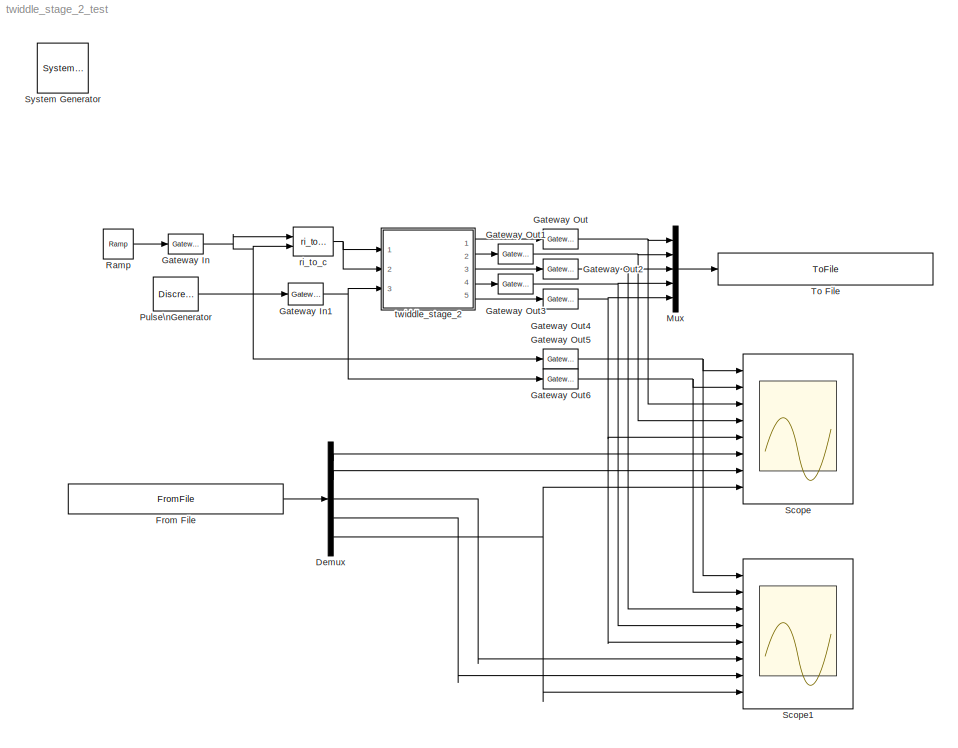
MODEL twiddle_stage_2_test
KIND model
BLOCK [Reference]  System Generator  REF=xbsIndex_r4/ System Generator
  AttributesFormatString = System\\nGenerator
  FunctionWithSeparateData = off
  Ports = []
  RTWMemSecDataConstants = Inherit from model
  RTWMemSecDataInternal = Inherit from model
  RTWMemSecDataParameters = Inherit from model
  RTWMemSecFuncExecute = Inherit from model
  RTWMemSecFuncInitTerm = Inherit from model
  ShowPortLabels = FromPortIcon
  SourceBlock = xbsIndex_r4/ System Generator
  SourceType = Xilinx System Generator Block
  SystemSampleTime = -1
  Tag = genX
  UserData = DataTag0
  UserDataPersistent = on
  block_type = sysgen
  block_version = 10.1.1
  clock_wrapper = Clock Enables
  core_generation = According to Block Masks
  dbl_ovrd = According to Block Masks
  dcm_input_clock_period = 100
  deprecated_control = off
  directory = ./netlist
  eval_field = 0
  has_advanced_control = 0
  incr_netlist = off
  infoedit = System Generator
  package = ff668
  part = xc4vsx35
  run_coregen = off
  sg_icon_stat = 51,50,-1,-1,red,beige,0,07734,right
  sg_mask_display = fprintf('','COMMENT: begin icon graphics');\npatch([0 51 51 0 ],[0 0 50 50 ],[0.93 0.92 0.86]);\npatch([12 4 16 4 12 25 29 33 47 36 25 17 29 17 25 36 47 33 29 25 12 ],[5 13 25 37 45 45 41 45 45 34 45 37 25 13 5 16 5 5 9 5 5 ],[0.6 0.2 0.25]);\nplot([0 51 51 0 0 ],[0 0 50 50 0 ]);\nfprintf('','COMMENT: end icon graphics');\nfprintf('','COMMENT: begin icon text');\nfprintf('','COMMENT: end icon text...<+5ch>
  sggui_pos = -1,-1,-1,-1
  simulink_period = 1
  speed = -10
  synthesis_tool = XST
  sysclk_period = 100
  testbench = off
  trim_vbits = Everywhere in SubSystem
  xilinxfamily = Virtex4
BLOCK [Demux] Demux
  DisplayOption = bar
  Outputs = 5
  Ports = [1, 5]
BLOCK [FromFile] From File
  FileName = twiddle_stage_2_test_reference.mat
  SampleTime = 1
BLOCK [Reference] Gateway In  REF=xbsIndex_r4/Gateway In
  LOCs = {}
  Ports = [1, 1]
  SourceBlock = xbsIndex_r4/Gateway In
  SourceType = Xilinx Gateway In Block
  arith_type = Signed  (2's comp)
  bin_pt = 4
  block_type = gatewayin
  block_version = 10.1.1
  dbl_ovrd = off
  has_advanced_control = 0
  hdl_port = on
  infoedit = Gateway in block.  Converts inputs of type Simulink integer, double and fixed point to  Xilinx fixed point type.<P><P>Hardware notes:  In hardware these blocks become top level input ports.
  locs_specified = off
  n_bits = 5
  overflow = Wrap
  period = 1
  quantization = Truncate
  sg_icon_stat = 35,20,1,1,white,yellow,0,00d3666e,right,
  sg_mask_display = fprintf('','COMMENT: begin icon graphics');\npatch([0 1 1 0 ],[0 0 1 1 ],[0.95 0.93 0.65]);\npatch([0.342857 0.257143 0.4 0.257143 0.342857 0.485714 0.514286 0.542857 0.714286 0.6 0.485714 0.4 0.542857 0.4 0.485714 0.6 0.714286 0.542857 0.514286 0.485714 0.342857 ],[0.1 0.25 0.5 0.75 0.9 0.9 0.85 0.9 0.9 0.7 0.9 0.75 0.5 0.25 0.1 0.3 0.1 0.1 0.15 0.1 0.1 ],[0.98 0.96 0.92]);\nplot([0 1 1 0 0 ],[0 ...<+261ch>
  sggui_pos = 811,72,407,458
  timing_constraint = None
  xl_area = [0,0,0,0,0,0,0]
  xl_use_area = off
BLOCK [Reference] Gateway In1  REF=xbsIndex_r4/Gateway In
  LOCs = {}
  Ports = [1, 1]
  SourceBlock = xbsIndex_r4/Gateway In
  SourceType = Xilinx Gateway In Block
  arith_type = Boolean
  bin_pt = 14
  block_type = gatewayin
  block_version = 10.1.1
  dbl_ovrd = off
  has_advanced_control = 0
  hdl_port = on
  infoedit = Gateway in block.  Converts inputs of type Simulink integer, double and fixed point to  Xilinx fixed point type.<P><P>Hardware notes:  In hardware these blocks become top level input ports.
  locs_specified = off
  n_bits = 16
  overflow = Saturate
  period = 1
  quantization = Round  (unbiased: +/- Inf)
  sg_icon_stat = 35,22,1,1,white,yellow,0,00d3666e,right,
  sg_mask_display = fprintf('','COMMENT: begin icon graphics');\npatch([0 1 1 0 ],[0 0 1 1 ],[0.95 0.93 0.65]);\npatch([0.342857 0.228571 0.371429 0.228571 0.342857 0.514286 0.571429 0.628571 0.8 0.657143 0.514286 0.428571 0.6 0.428571 0.514286 0.657143 0.8 0.628571 0.571429 0.514286 0.342857 ],[0.0909091 0.272727 0.5 0.727273 0.909091 0.909091 0.818182 0.909091 0.909091 0.681818 0.909091 0.772727 0.5 0.227273 0.0909...<+366ch>
  sggui_pos = 20,20,407,458
  timing_constraint = None
  xl_area = [0,0,0,0,0,0,0]
  xl_use_area = off
BLOCK [Reference] Gateway Out  REF=xbsIndex_r4/Gateway Out
  LOCs = {}
  Ports = [1, 1]
  SourceBlock = xbsIndex_r4/Gateway Out
  SourceType = Xilinx Gateway Out Block
  block_type = gatewayout
  block_version = 10.1.1
  has_advanced_control = 0
  hdl_port = on
  infoedit = Gateway out block.  Converts Xilinx fixed point inputs into ouputs of type Simulink integer, double, or fixed point.<P><P>Hardware notes:  In hardware these blocks become top level output ports or are discarded, depending on how they are configured.  <repeated x7 — deduplicated; at blocks: Gateway Out, Gateway Out1, Gateway Out2, Gateway Out3, Gateway Out4, Gateway Out5, Gateway Out6>
  locs_specified = off
  sg_icon_stat = 35,20,1,1,white,yellow,0,cc31b7ac,right,
  sg_mask_display = fprintf('','COMMENT: begin icon graphics');\npatch([0 1 1 0 ],[0 0 1 1 ],[0.95 0.93 0.65]);\npatch([0.342857 0.257143 0.4 0.257143 0.342857 0.485714 0.514286 0.542857 0.714286 0.6 0.485714 0.4 0.542857 0.4 0.485714 0.6 0.714286 0.542857 0.514286 0.485714 0.342857 ],[0.1 0.25 0.5 0.75 0.9 0.9 0.85 0.9 0.9 0.7 0.9 0.75 0.5 0.25 0.1 0.3 0.1 0.1 0.15 0.1 0.1 ],[0.98 0.96 0.92]);\nplot([0 1 1 0 0 ],[0 ...<+262ch>  <repeated x7 — deduplicated; at blocks: Gateway Out, Gateway Out1, Gateway Out2, Gateway Out3, Gateway Out4, Gateway Out5, Gateway Out6>
  sggui_pos = -1,-1,-1,-1
  timing_constraint = None
  xl_area = [0,0,0,0,0,0,0]
  xl_use_area = off
BLOCK [Reference] Gateway Out1  REF=xbsIndex_r4/Gateway Out
  LOCs = {}
  Ports = [1, 1]
  SourceBlock = xbsIndex_r4/Gateway Out
  SourceType = Xilinx Gateway Out Block
  block_type = gatewayout
  block_version = 10.1.1
  has_advanced_control = 0
  hdl_port = on
  locs_specified = off
  sg_icon_stat = 35,20,1,1,white,yellow,0,cc31b7ac,right,
  sggui_pos = -1,-1,-1,-1
  timing_constraint = None
  xl_area = [0,0,0,0,0,0,0]
  xl_use_area = off
BLOCK [Reference] Gateway Out2  REF=xbsIndex_r4/Gateway Out
  LOCs = {}
  Ports = [1, 1]
  SourceBlock = xbsIndex_r4/Gateway Out
  SourceType = Xilinx Gateway Out Block
  block_type = gatewayout
  block_version = 10.1.1
  has_advanced_control = 0
  hdl_port = on
  locs_specified = off
  sg_icon_stat = 35,20,1,1,white,yellow,0,cc31b7ac,right,
  sggui_pos = -1,-1,-1,-1
  timing_constraint = None
  xl_area = [0,0,0,0,0,0,0]
  xl_use_area = off
BLOCK [Reference] Gateway Out3  REF=xbsIndex_r4/Gateway Out
  LOCs = {}
  Ports = [1, 1]
  SourceBlock = xbsIndex_r4/Gateway Out
  SourceType = Xilinx Gateway Out Block
  block_type = gatewayout
  block_version = 10.1.1
  has_advanced_control = 0
  hdl_port = on
  locs_specified = off
  sg_icon_stat = 35,20,1,1,white,yellow,0,cc31b7ac,right,
  sggui_pos = -1,-1,-1,-1
  timing_constraint = None
  xl_area = [0,0,0,0,0,0,0]
  xl_use_area = off
BLOCK [Reference] Gateway Out4  REF=xbsIndex_r4/Gateway Out
  LOCs = {}
  Ports = [1, 1]
  SourceBlock = xbsIndex_r4/Gateway Out
  SourceType = Xilinx Gateway Out Block
  block_type = gatewayout
  block_version = 10.1.1
  has_advanced_control = 0
  hdl_port = on
  locs_specified = off
  sg_icon_stat = 35,20,1,1,white,yellow,0,cc31b7ac,right,
  sggui_pos = -1,-1,-1,-1
  timing_constraint = None
  xl_area = [0,0,0,0,0,0,0]
  xl_use_area = off
BLOCK [Reference] Gateway Out5  REF=xbsIndex_r4/Gateway Out
  LOCs = {}
  Ports = [1, 1]
  SourceBlock = xbsIndex_r4/Gateway Out
  SourceType = Xilinx Gateway Out Block
  block_type = gatewayout
  block_version = 10.1.1
  has_advanced_control = 0
  hdl_port = on
  locs_specified = off
  sg_icon_stat = 35,20,1,1,white,yellow,0,cc31b7ac,right,
  sggui_pos = -1,-1,-1,-1
  timing_constraint = None
  xl_area = [0,0,0,0,0,0,0]
  xl_use_area = off
BLOCK [Reference] Gateway Out6  REF=xbsIndex_r4/Gateway Out
  LOCs = {}
  Ports = [1, 1]
  SourceBlock = xbsIndex_r4/Gateway Out
  SourceType = Xilinx Gateway Out Block
  block_type = gatewayout
  block_version = 10.1.1
  has_advanced_control = 0
  hdl_port = on
  locs_specified = off
  sg_icon_stat = 35,20,1,1,white,yellow,0,cc31b7ac,right,
  sggui_pos = -1,-1,-1,-1
  timing_constraint = None
  xl_area = [0,0,0,0,0,0,0]
  xl_use_area = off
BLOCK [Mux] Mux
  DisplayOption = bar
  Inputs = 5
  Ports = [5, 1]
BLOCK [DiscretePulseGenerator] Pulse\nGenerator
  Period = 256
  PhaseDelay = 7
  Ports = [0, 1]
BLOCK [Reference] Ramp  REF=simulink/Sources/Ramp
  FunctionWithSeparateData = off
  Ports = [0, 1]
  RTWMemSecDataConstants = Inherit from model
  RTWMemSecDataInternal = Inherit from model
  RTWMemSecDataParameters = Inherit from model
  RTWMemSecFuncExecute = Inherit from model
  RTWMemSecFuncInitTerm = Inherit from model
  ShowPortLabels = FromPortIcon
  SourceBlock = simulink/Sources/Ramp
  SourceType = Ramp
  SystemSampleTime = -1
  VectorParams1D = on
  X0 = 0
  slope = 1/2^5
  start = 0
BLOCK [Scope] Scope
  DataFormat = StructureWithTime
  Floating = off
  NumInputPorts = 8
  Ports = [8]
  SampleTime = 0
  TimeRange = 1000
  YMax = 1~1~1~1~1~1~1~1
  YMin = -1~0~-1~-1~0~-1~-1~-1
  ZoomMode = xonly
BLOCK [Scope] Scope1
  DataFormat = StructureWithTime
  Floating = off
  NumInputPorts = 8
  Ports = [8]
  SampleTime = 0
  SaveName = ScopeData1
  YMax = 1~1~1~1~1~1~1~1
  YMin = -1~-1~-1~-1~-1~-1~-1~-1
  ZoomMode = xonly
BLOCK [ToFile] To File
  Filename = twiddle_stage_2_test_output.mat
  MatrixName = output
BLOCK [Reference] ri_to_c  REF=casper_library_misc/ri_to_c  (lib defined in mdl_357510c33b49, mdl_57b5f564ae26, +4 more)
  FunctionWithSeparateData = off
  Ports = [2, 1]
  RTWMemSecDataConstants = Inherit from model
  RTWMemSecDataInternal = Inherit from model
  RTWMemSecDataParameters = Inherit from model
  RTWMemSecFuncExecute = Inherit from model
  RTWMemSecFuncInitTerm = Inherit from model
  ShowPortLabels = FromPortIcon
  SourceBlock = casper_library_misc/ri_to_c
  SourceType = ri_to_c
  SystemSampleTime = -1
  UserData = DataTag1
  UserDataPersistent = on
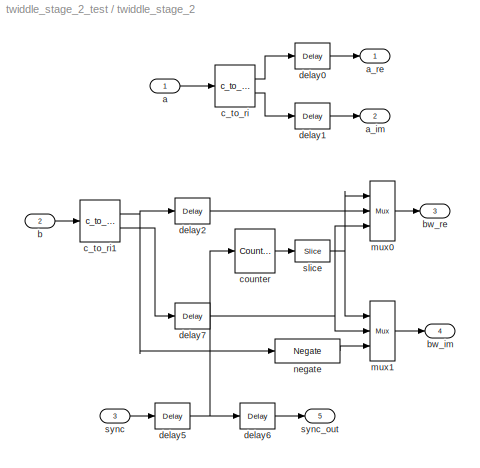
BLOCK [SubSystem] twiddle_stage_2
  AncestorBlock = casper_library_ffts_twiddle/twiddle_stage_2
  FunctionWithSeparateData = off
  MaskCallbackString = ||||||
  MaskDescription = Used in FFT library. Used when coefficients \nare 2^0 i.e just pass data through without delays
  MaskEnableString = on,on,on,on,on,on,on
  MaskHideContents = off
  MaskIconFrame = on
  MaskIconOpaque = on
  MaskIconRotate = none
  MaskIconUnits = autoscale
  MaskInitialization = set_param(gcb,'LinkStatus','inactive');\nif(strcmp(opt_target, 'logic')), \n    lat = add_latency;\n    lat_str = 'add_latency';\nelse,\n    lat = add_latency*2;\n    lat_str = 'add_latency*2';\nend\nset_param([gcb,'/delay0'], 'latency', ...\n    ['bram_latency+mult_latency+conv_latency+',lat_str]);\nset_param([gcb,'/delay1'], 'latency', ...\n    ['bram_latency+mult_latency+conv_latency+',lat_str]...<+265ch>
  MaskPromptString = FFT Size (2^?)|Input Bit Width|Add Latency|Mult Latency|BRAM Latency|Convert latency|Use less
  MaskSelfModifiable = on
  MaskStyleString = edit,edit,edit,edit,edit,edit,popup(logic|multipliers)
  MaskTabNameString = ,,,,,,
  MaskToolTipString = on,on,on,on,on,on,on
  MaskTunableValueString = on,on,on,on,on,on,on
  MaskType = twiddle_pass_through
  MaskValueString = 6|5|2|3|2|1|multipliers
  MaskVarAliasString = ,,,,,,
  MaskVariables = FFTSize=@1;input_bit_width=@2;add_latency=@3;mult_latency=@4;bram_latency=@5;conv_latency=@6;opt_target=&7;
  MaskVisibilityString = on,on,on,on,on,on,on
  MinAlgLoopOccurrences = off
  Opaque = off
  Ports = [3, 5]
  PropExecContextOutsideSubsystem = off
  RTWSystemCode = Auto
  RequestExecContextInheritance = off
BLOCK [Inport] twiddle_stage_2/a
  IconDisplay = Port number
  OutDataType = sfix(16)
  OutScaling = 2^0
BLOCK [Outport] twiddle_stage_2/a_im
  IconDisplay = Port number
  OutDataType = sfix(16)
  OutScaling = 2^0
  Port = 2
BLOCK [Outport] twiddle_stage_2/a_re
  IconDisplay = Port number
  OutDataType = sfix(16)
  OutScaling = 2^0
BLOCK [Inport] twiddle_stage_2/b
  IconDisplay = Port number
  OutDataType = sfix(16)
  OutScaling = 2^0
  Port = 2
BLOCK [Outport] twiddle_stage_2/bw_im
  IconDisplay = Port number
  OutDataType = sfix(16)
  OutScaling = 2^0
  Port = 4
BLOCK [Outport] twiddle_stage_2/bw_re
  IconDisplay = Port number
  OutDataType = sfix(16)
  OutScaling = 2^0
  Port = 3
BLOCK [Reference] twiddle_stage_2/c_to_ri  REF=casper_library_misc/c_to_ri  (lib defined in mdl_357510c33b49, mdl_57b5f564ae26, +4 more)
  AttributesFormatString = 5_4 r/i
  FunctionWithSeparateData = off
  Ports = [1, 2]
  RTWMemSecDataConstants = Inherit from model
  RTWMemSecDataInternal = Inherit from model
  RTWMemSecDataParameters = Inherit from model
  RTWMemSecFuncExecute = Inherit from model
  RTWMemSecFuncInitTerm = Inherit from model
  ShowPortLabels = FromPortIcon
  SourceBlock = casper_library_misc/c_to_ri
  SourceType = c_to_ri
  SystemSampleTime = -1
  UserData = DataTag2
  UserDataPersistent = on
  bin_pt = input_bit_width-1
  n_bits = input_bit_width
BLOCK [Reference] twiddle_stage_2/c_to_ri1  REF=casper_library_misc/c_to_ri  (lib defined in mdl_357510c33b49, mdl_57b5f564ae26, +4 more)
  AttributesFormatString = 5_4 r/i
  FunctionWithSeparateData = off
  Ports = [1, 2]
  RTWMemSecDataConstants = Inherit from model
  RTWMemSecDataInternal = Inherit from model
  RTWMemSecDataParameters = Inherit from model
  RTWMemSecFuncExecute = Inherit from model
  RTWMemSecFuncInitTerm = Inherit from model
  ShowPortLabels = FromPortIcon
  SourceBlock = casper_library_misc/c_to_ri
  SourceType = c_to_ri
  SystemSampleTime = -1
  UserData = DataTag3
  UserDataPersistent = on
  bin_pt = input_bit_width-1
  n_bits = input_bit_width
BLOCK [Reference] twiddle_stage_2/counter  REF=xbsIndex_r4/Counter
  Ports = [1, 1]
  SourceBlock = xbsIndex_r4/Counter
  SourceType = Xilinx Counter Block
  arith_type = Unsigned
  bin_pt = 0
  block_type = counter
  block_version = 11.4
  cnt_by_val = 1
  cnt_to = Inf
  cnt_type = Free Running
  dbl_ovrd = off
  en = off
  explicit_period = on
  has_advanced_control = 0
  implementation = Fabric
  infoedit = Hardware notes: Free running counters are the least expensive in hardware.  A count limited counter is implemented by combining a counter with a comparator.
  load_pin = off
  n_bits = FFTSize - 1
  operation = Up
  period = 1
  rst = on
  sg_icon_stat = 40,44,1,1,white,blue,0,c59595e6,right,
  sg_mask_display = fprintf('','COMMENT: begin icon graphics');\npatch([0 1 1 0 ],[0 0 1 1 ],[0.77 0.82 0.91]);\npatch([0.25 0.075 0.3 0.075 0.25 0.525 0.6 0.675 0.95 0.725 0.5 0.35 0.6 0.35 0.5 0.725 0.95 0.675 0.6 0.525 0.25 ],[0.136364 0.295455 0.5 0.704545 0.863636 0.863636 0.795455 0.863636 0.863636 0.659091 0.863636 0.727273 0.5 0.272727 0.136364 0.340909 0.136364 0.136364 0.204545 0.136364 0.136364 ],[0.98 0.9...<+259ch>
  sggui_pos = 1212,281,419,748
  start_count = 0
  use_behavioral_HDL = on
  xl_area = [0,0,0,0,0,0,0]
  xl_use_area = off
BLOCK [Reference] twiddle_stage_2/delay0  REF=xbsIndex_r4/Delay
  Ports = [1, 1]
  SourceBlock = xbsIndex_r4/Delay
  SourceType = Xilinx Delay Block
  block_type = delay
  block_version = 11.4
  dbl_ovrd = off
  en = off
  has_advanced_control = 0
  infoedit = Hardware notes: A delay line is a chain, each link of which is an SRL16 followed by a flip-flop.
  latency = bram_latency+mult_latency+conv_latency+add_latency*2
  reg_retiming = on
  sg_icon_stat = 35,26,1,1,white,blue,0,8c471295,right,
  sg_mask_display = fprintf('','COMMENT: begin icon graphics');\npatch([0 1 1 0 ],[0 0 1 1 ],[0.77 0.82 0.91]);\npatch([0.285714 0.171429 0.342857 0.171429 0.285714 0.485714 0.542857 0.6 0.8 0.628571 0.457143 0.342857 0.514286 0.342857 0.457143 0.628571 0.8 0.6 0.542857 0.485714 0.285714 ],[0.115385 0.269231 0.5 0.730769 0.884615 0.884615 0.807692 0.884615 0.884615 0.653846 0.884615 0.730769 0.5 0.269231 0.115385 0.3...<+278ch>
  sggui_pos = 554,317,419,315
  xl_area = [0,0,0,0,0,0,0]
  xl_use_area = off
BLOCK [Reference] twiddle_stage_2/delay1  REF=xbsIndex_r4/Delay
  Ports = [1, 1]
  SourceBlock = xbsIndex_r4/Delay
  SourceType = Xilinx Delay Block
  block_type = delay
  block_version = 11.4
  dbl_ovrd = off
  en = off
  has_advanced_control = 0
  infoedit = Hardware notes: A delay line is a chain, each link of which is an SRL16 followed by a flip-flop.
  latency = bram_latency+mult_latency+conv_latency+add_latency*2
  reg_retiming = on
  sg_icon_stat = 35,26,1,1,white,blue,0,8c471295,right,
  sg_mask_display = fprintf('','COMMENT: begin icon graphics');\npatch([0 1 1 0 ],[0 0 1 1 ],[0.77 0.82 0.91]);\npatch([0.285714 0.171429 0.342857 0.171429 0.285714 0.485714 0.542857 0.6 0.8 0.628571 0.457143 0.342857 0.514286 0.342857 0.457143 0.628571 0.8 0.6 0.542857 0.485714 0.285714 ],[0.115385 0.269231 0.5 0.730769 0.884615 0.884615 0.807692 0.884615 0.884615 0.653846 0.884615 0.730769 0.5 0.269231 0.115385 0.3...<+278ch>
  sggui_pos = 535,406,419,315
  xl_area = [0,0,0,0,0,0,0]
  xl_use_area = off
BLOCK [Reference] twiddle_stage_2/delay2  REF=xbsIndex_r4/Delay
  Ports = [1, 1]
  SourceBlock = xbsIndex_r4/Delay
  SourceType = Xilinx Delay Block
  block_type = delay
  block_version = 11.4
  dbl_ovrd = off
  en = off
  has_advanced_control = 0
  infoedit = Hardware notes: A delay line is a chain, each link of which is an SRL16 followed by a flip-flop.
  latency = bram_latency
  reg_retiming = on
  sg_icon_stat = 35,26,1,1,white,blue,0,85ce9542,right,
  sg_mask_display = fprintf('','COMMENT: begin icon graphics');\npatch([0 1 1 0 ],[0 0 1 1 ],[0.77 0.82 0.91]);\npatch([0.285714 0.171429 0.342857 0.171429 0.285714 0.485714 0.542857 0.6 0.8 0.628571 0.457143 0.342857 0.514286 0.342857 0.457143 0.628571 0.8 0.6 0.542857 0.485714 0.285714 ],[0.115385 0.269231 0.5 0.730769 0.884615 0.884615 0.807692 0.884615 0.884615 0.653846 0.884615 0.730769 0.5 0.269231 0.115385 0.3...<+277ch>  <repeated x4 — deduplicated; at blocks: delay2, delay5, delay6, delay7>
  sggui_pos = 755,316,419,315
  xl_area = [0,0,0,0,0,0,0]
  xl_use_area = off
BLOCK [Reference] twiddle_stage_2/delay5  REF=xbsIndex_r4/Delay
  Ports = [1, 1]
  SourceBlock = xbsIndex_r4/Delay
  SourceType = Xilinx Delay Block
  block_type = delay
  block_version = 11.4
  dbl_ovrd = off
  en = off
  has_advanced_control = 0
  infoedit = Hardware notes: A delay line is a chain, each link of which is an SRL16 followed by a flip-flop.
  latency = bram_latency
  reg_retiming = on
  sg_icon_stat = 35,26,1,1,white,blue,0,85ce9542,right,
  sggui_pos = 757,370,419,315
  xl_area = [0,0,0,0,0,0,0]
  xl_use_area = off
BLOCK [Reference] twiddle_stage_2/delay6  REF=xbsIndex_r4/Delay
  Ports = [1, 1]
  SourceBlock = xbsIndex_r4/Delay
  SourceType = Xilinx Delay Block
  block_type = delay
  block_version = 11.4
  dbl_ovrd = off
  en = off
  has_advanced_control = 0
  infoedit = Hardware notes: A delay line is a chain, each link of which is an SRL16 followed by a flip-flop.
  latency = mult_latency+conv_latency+add_latency*2
  reg_retiming = on
  sg_icon_stat = 35,26,1,1,white,blue,0,e47f993a,right,
  sggui_pos = 758,397,419,315
  xl_area = [0,0,0,0,0,0,0]
  xl_use_area = off
BLOCK [Reference] twiddle_stage_2/delay7  REF=xbsIndex_r4/Delay
  Ports = [1, 1]
  SourceBlock = xbsIndex_r4/Delay
  SourceType = Xilinx Delay Block
  block_type = delay
  block_version = 11.4
  dbl_ovrd = off
  en = off
  has_advanced_control = 0
  infoedit = Hardware notes: A delay line is a chain, each link of which is an SRL16 followed by a flip-flop.
  latency = bram_latency
  reg_retiming = on
  sg_icon_stat = 35,26,1,1,white,blue,0,85ce9542,right,
  sggui_pos = 754,289,419,315
  xl_area = [0,0,0,0,0,0,0]
  xl_use_area = off
BLOCK [Reference] twiddle_stage_2/mux0  REF=xbsIndex_r4/Mux
  Ports = [3, 1]
  SourceBlock = xbsIndex_r4/Mux
  SourceType = Xilinx Bus Multiplexer Block
  arith_type = Unsigned
  bin_pt = 14
  block_type = mux
  block_version = 11.4
  dbl_ovrd = off
  en = off
  has_advanced_control = 0
  inputs = 2
  latency = 8
  n_bits = 16
  overflow = Wrap
  precision = Full
  quantization = Truncate
  sg_icon_stat = 25,60,3,1,white,blue,3,17bfc765,right,
  sg_list_contents = {'table'=>{'inputs'=>'popup(2|3|4|5|6|7|8|9|10|11|12|13|14|15|16|17|18|19|20|21|22|23|24|25|26|27|28|29|30|31|32)','userSelections'=>{'inputs'=>'2'}}}
  sg_mask_display = fprintf('','COMMENT: begin icon graphics');\npatch([0 1 1 0 ],[0 0.142857 0.857143 1 ],[0.77 0.82 0.91]);\npatch([0.24 0.08 0.32 0.08 0.24 0.52 0.6 0.68 0.96 0.72 0.52 0.36 0.56 0.36 0.52 0.72 0.96 0.68 0.6 0.52 0.24 ],[0.333333 0.4 0.5 0.6 0.666667 0.666667 0.633333 0.666667 0.666667 0.566667 0.65 0.583333 0.5 0.416667 0.35 0.433333 0.333333 0.333333 0.366667 0.333333 0.333333 ],[0.98 0.96 0.92])...<+362ch>
  sggui_pos = 26,206,419,344
  xl_area = [0,0,0,0,0,0,0]
  xl_use_area = off
BLOCK [Reference] twiddle_stage_2/mux1  REF=xbsIndex_r4/Mux
  Ports = [3, 1]
  SourceBlock = xbsIndex_r4/Mux
  SourceType = Xilinx Bus Multiplexer Block
  arith_type = Unsigned
  bin_pt = 14
  block_type = mux
  block_version = 11.4
  dbl_ovrd = off
  en = off
  has_advanced_control = 0
  inputs = 2
  latency = 8
  n_bits = 16
  overflow = Wrap
  precision = Full
  quantization = Truncate
  sg_icon_stat = 25,60,3,1,white,blue,3,17bfc765,right,
  sg_list_contents = {'table'=>{'inputs'=>'popup(2|3|4|5|6|7|8|9|10|11|12|13|14|15|16|17|18|19|20|21|22|23|24|25|26|27|28|29|30|31|32)','userSelections'=>{'inputs'=>'2'}}}
  sg_mask_display = fprintf('','COMMENT: begin icon graphics');\npatch([0 1 1 0 ],[0 0.142857 0.857143 1 ],[0.77 0.82 0.91]);\npatch([0.24 0.08 0.32 0.08 0.24 0.52 0.6 0.68 0.96 0.72 0.52 0.36 0.56 0.36 0.52 0.72 0.96 0.68 0.6 0.52 0.24 ],[0.333333 0.4 0.5 0.6 0.666667 0.666667 0.633333 0.666667 0.666667 0.566667 0.65 0.583333 0.5 0.416667 0.35 0.433333 0.333333 0.333333 0.366667 0.333333 0.333333 ],[0.98 0.96 0.92])...<+362ch>
  sggui_pos = 23,125,419,344
  xl_area = [0,0,0,0,0,0,0]
  xl_use_area = off
BLOCK [Reference] twiddle_stage_2/negate  REF=xbsIndex_r4/Negate
  Ports = [1, 1]
  SourceBlock = xbsIndex_r4/Negate
  SourceType = Xilinx Negate Block Block
  arith_type = Signed  (2's comp)
  bin_pt = input_bit_width-1
  block_type = negate
  block_version = 11.4
  dbl_ovrd = off
  en = off
  has_advanced_control = 0
  latency = bram_latency
  n_bits = input_bit_width
  overflow = Saturate
  precision = User Defined
  quantization = Truncate
  sg_icon_stat = 65,24,1,1,white,blue,0,2acd2770,right,
  sg_mask_display = fprintf('','COMMENT: begin icon graphics');\npatch([0 1 1 0 ],[0 0 1 1 ],[0.77 0.82 0.91]);\npatch([0.4 0.338462 0.430769 0.338462 0.4 0.492308 0.523077 0.553846 0.661538 0.584615 0.507692 0.446154 0.538462 0.446154 0.507692 0.584615 0.661538 0.553846 0.523077 0.492308 0.4 ],[0.125 0.291667 0.541667 0.791667 0.958333 0.958333 0.875 0.958333 0.958333 0.75 0.958333 0.791667 0.541667 0.291667 0.125 0...<+280ch>
  sggui_pos = 593,221,419,441
  xl_area = [0,0,0,0,0,0,0]
  xl_use_area = off
BLOCK [Reference] twiddle_stage_2/slice  REF=xbsIndex_r4/Slice
  Ports = [1, 1]
  SourceBlock = xbsIndex_r4/Slice
  SourceType = Xilinx Bit Slice Extractor Block
  base0 = LSB of Input
  base1 = MSB of Input
  bit0 = 0
  bit1 = 0
  block_type = slice
  block_version = 11.4
  boolean_output = off
  dbl_ovrd = off
  has_advanced_control = 0
  infoedit = Extracts a given range of bits from each input sample and presents it at the output.  The output type is ordinarily unsigned with binary point at zero, but can be Boolean when the slice is one bit wide.<br><br>Hardware notes: In hardware this block costs nothing.
  mode = Upper Bit Location + Width
  nbits = 1
  sg_icon_stat = 35,22,1,1,white,blue,0,1fd851a7,right,
  sg_mask_display = fprintf('','COMMENT: begin icon graphics');\npatch([0 1 1 0 ],[0 0 1 1 ],[0.77 0.82 0.91]);\npatch([0.342857 0.228571 0.371429 0.228571 0.342857 0.514286 0.571429 0.628571 0.8 0.657143 0.514286 0.428571 0.6 0.428571 0.514286 0.657143 0.8 0.628571 0.571429 0.514286 0.342857 ],[0.0909091 0.272727 0.5 0.727273 0.909091 0.909091 0.818182 0.909091 0.909091 0.681818 0.909091 0.772727 0.5 0.227273 0.0909...<+289ch>
  sggui_pos = 716,207,540,482
BLOCK [Inport] twiddle_stage_2/sync
  IconDisplay = Port number
  OutDataType = sfix(16)
  OutScaling = 2^0
  Port = 3
BLOCK [Outport] twiddle_stage_2/sync_out
  IconDisplay = Port number
  OutDataType = sfix(16)
  OutScaling = 2^0
  Port = 5
LINE Demux:1 -> Scope:6
LINE Demux:2 -> Scope:7
LINE Demux:3 -> Scope1:6
LINE Demux:4 -> Scope1:7
NET Demux:5 -> Scope1:8, Scope:8
LINE From File:1 -> Demux:1
NET Gateway In1:1 -> Gateway Out6:1, twiddle_stage_2:3
NET Gateway In:1 -> Gateway Out5:1, ri_to_c:1, ri_to_c:2
NET Gateway Out1:1 -> Mux:2, Scope:4
NET Gateway Out2:1 -> Mux:3, Scope1:3
NET Gateway Out3:1 -> Mux:4, Scope1:4
NET Gateway Out4:1 -> Mux:5, Scope1:5, Scope:5
NET Gateway Out5:1 -> Scope1:1, Scope:1
NET Gateway Out6:1 -> Scope1:2, Scope:2
NET Gateway Out:1 -> Mux:1, Scope:3
LINE Mux:1 -> To File:1
LINE Pulse\nGenerator:1 -> Gateway In1:1
LINE Ramp:1 -> Gateway In:1
NET ri_to_c:1 -> twiddle_stage_2:1, twiddle_stage_2:2
LINE twiddle_stage_2/a:1 -> twiddle_stage_2/c_to_ri:1
LINE twiddle_stage_2/b:1 -> twiddle_stage_2/c_to_ri1:1
NET twiddle_stage_2/c_to_ri1:1 -> twiddle_stage_2/delay2:1, twiddle_stage_2/negate:1
LINE twiddle_stage_2/c_to_ri1:2 -> twiddle_stage_2/delay7:1
LINE twiddle_stage_2/c_to_ri:1 -> twiddle_stage_2/delay0:1
LINE twiddle_stage_2/c_to_ri:2 -> twiddle_stage_2/delay1:1
LINE twiddle_stage_2/counter:1 -> twiddle_stage_2/slice:1
LINE twiddle_stage_2/delay0:1 -> twiddle_stage_2/a_re:1
LINE twiddle_stage_2/delay1:1 -> twiddle_stage_2/a_im:1
LINE twiddle_stage_2/delay2:1 -> twiddle_stage_2/mux0:2
NET twiddle_stage_2/delay5:1 -> twiddle_stage_2/counter:1, twiddle_stage_2/delay6:1
LINE twiddle_stage_2/delay6:1 -> twiddle_stage_2/sync_out:1
NET twiddle_stage_2/delay7:1 -> twiddle_stage_2/mux0:3, twiddle_stage_2/mux1:2
LINE twiddle_stage_2/mux0:1 -> twiddle_stage_2/bw_re:1
LINE twiddle_stage_2/mux1:1 -> twiddle_stage_2/bw_im:1
LINE twiddle_stage_2/negate:1 -> twiddle_stage_2/mux1:3
NET twiddle_stage_2/slice:1 -> twiddle_stage_2/mux0:1, twiddle_stage_2/mux1:1
LINE twiddle_stage_2/sync:1 -> twiddle_stage_2/delay5:1
LINE twiddle_stage_2:1 -> Gateway Out:1
LINE twiddle_stage_2:2 -> Gateway Out1:1
LINE twiddle_stage_2:3 -> Gateway Out2:1
LINE twiddle_stage_2:4 -> Gateway Out3:1
LINE twiddle_stage_2:5 -> Gateway Out4:1
note: NET lines group one-source signal fan-out (src -> all destinations, sorted); 1:1 wires keep LINE
